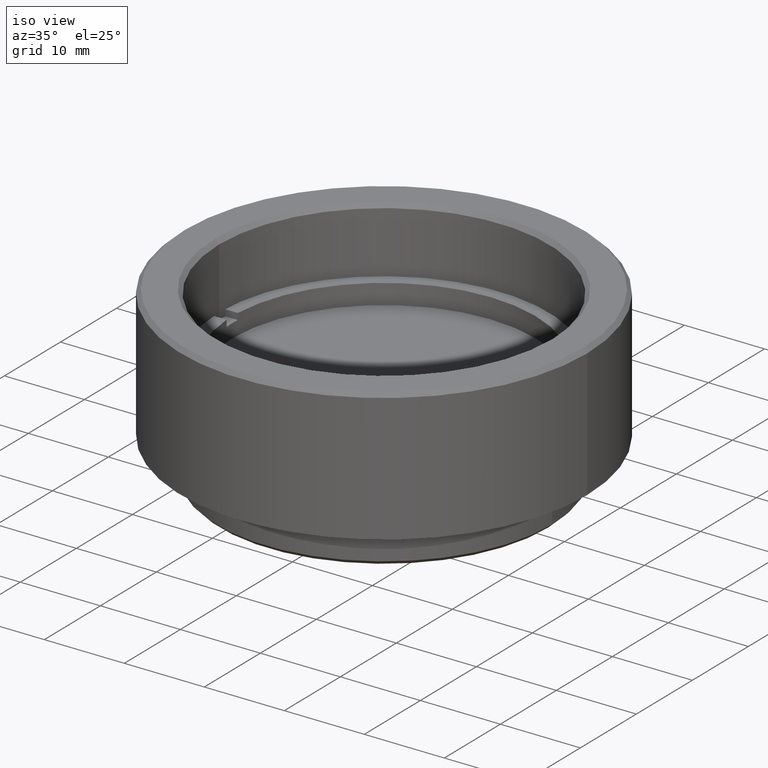
[diagram: clean part render]
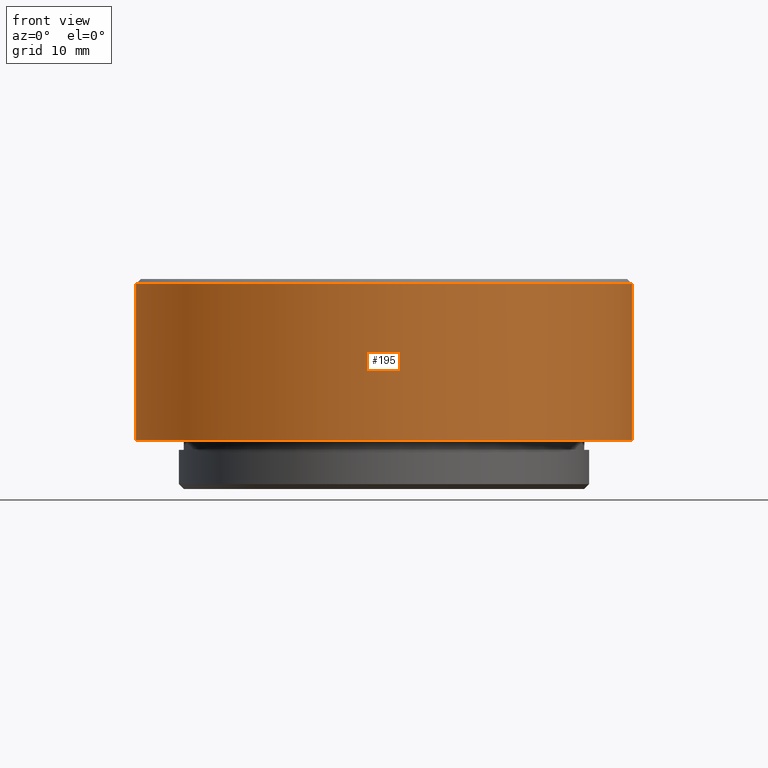
[diagram: tour spotlight — one face highlighted and labeled with its STEP entity id]
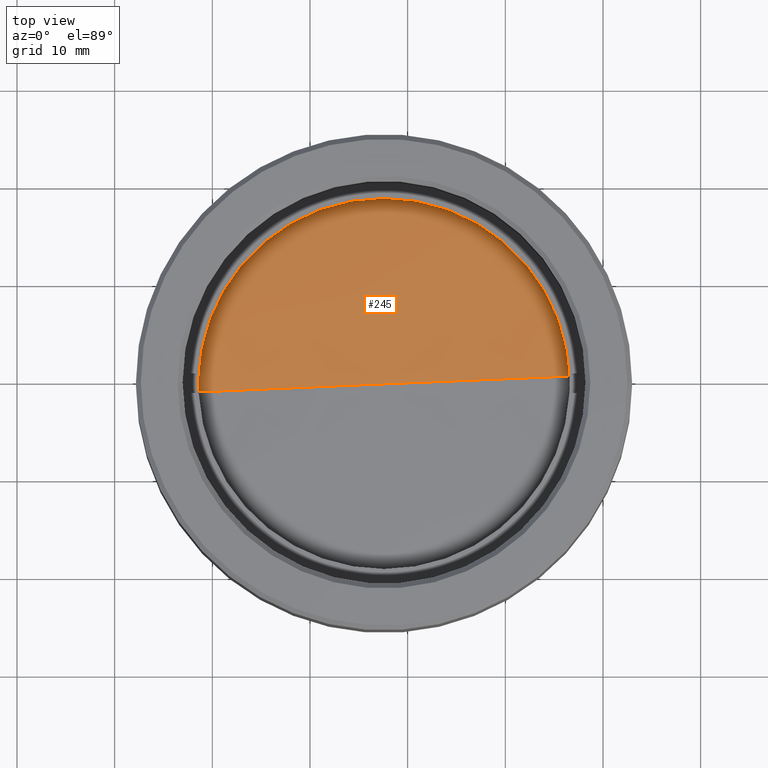
[diagram: tour spotlight — one face highlighted and labeled with its STEP entity id]
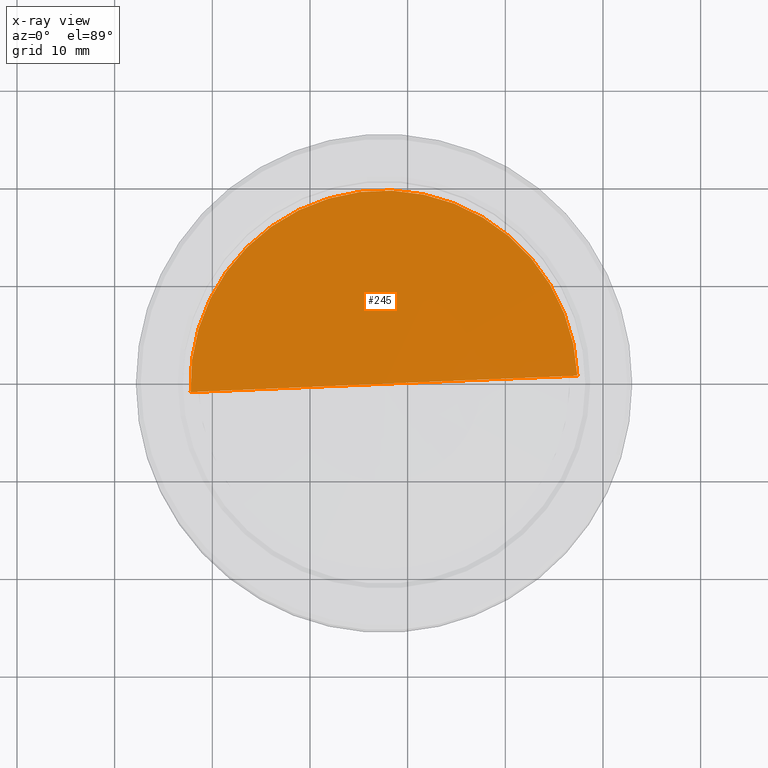
[diagram: x-ray of the same camera — body ghosted, this tour face saturated]
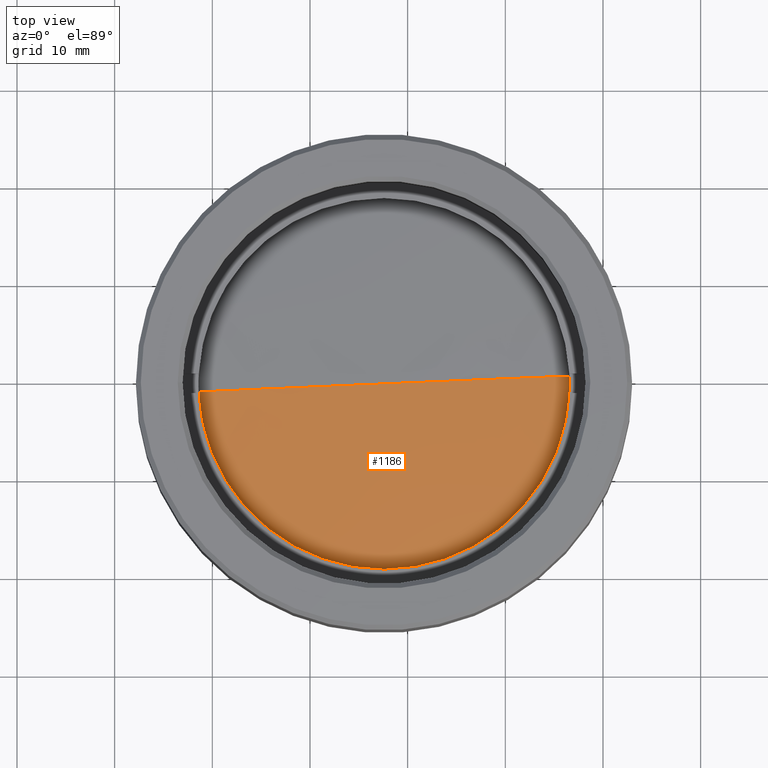
[diagram: tour spotlight — one face highlighted and labeled with its STEP entity id]
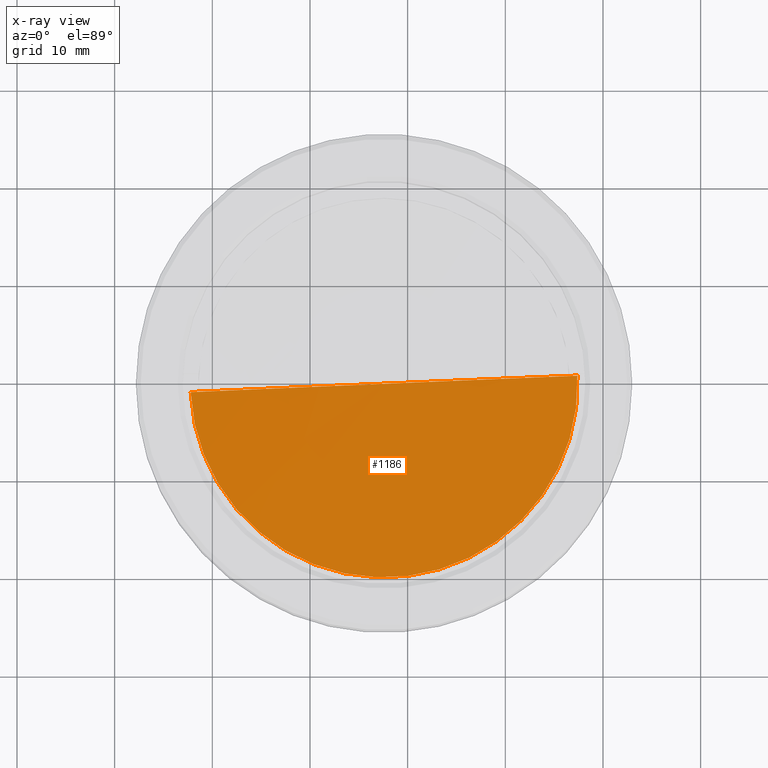
[diagram: x-ray of the same camera — body ghosted, this tour face saturated]
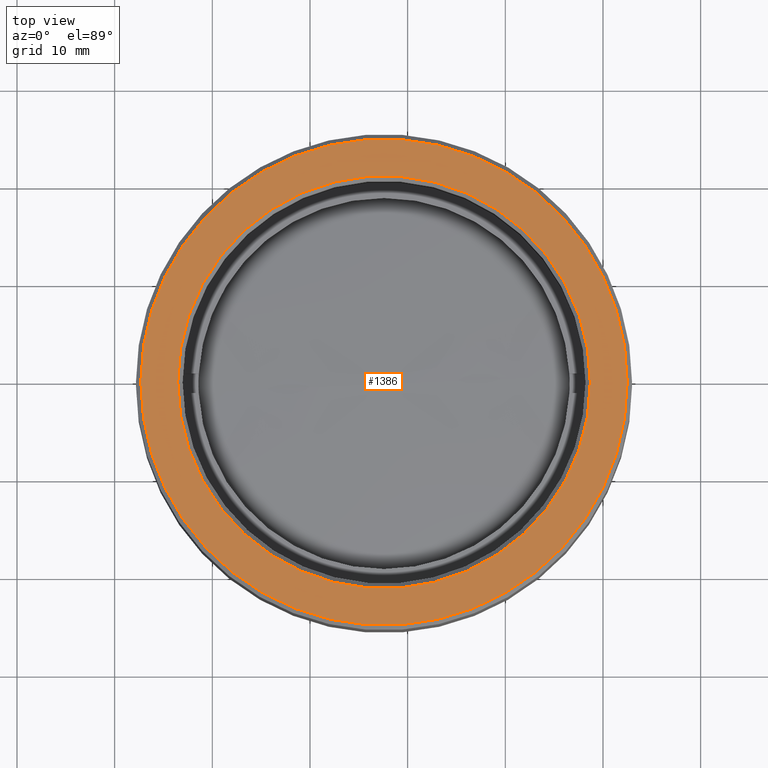
[diagram: tour spotlight — one face highlighted and labeled with its STEP entity id]
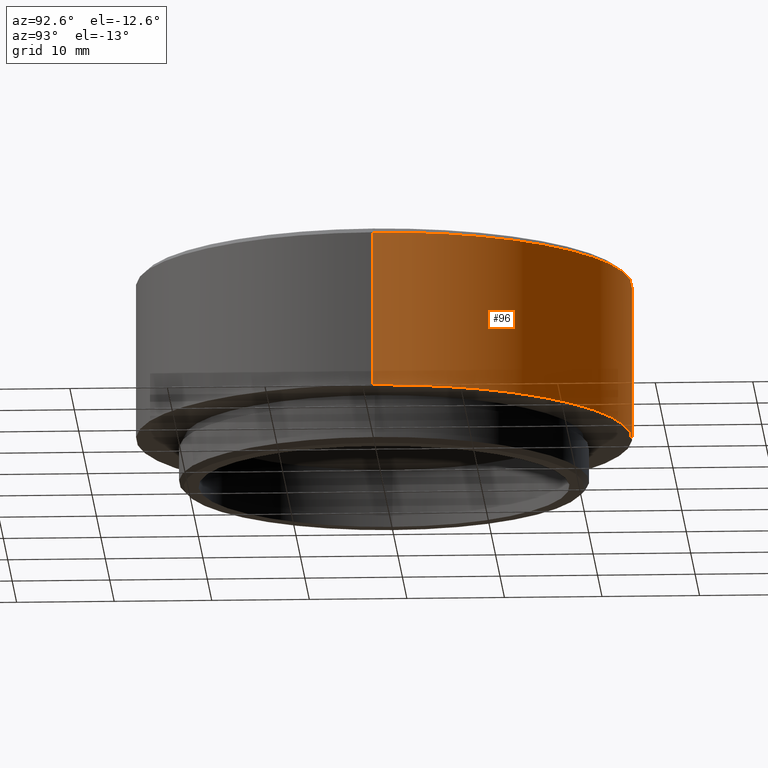
[diagram: tour spotlight — one face highlighted and labeled with its STEP entity id]
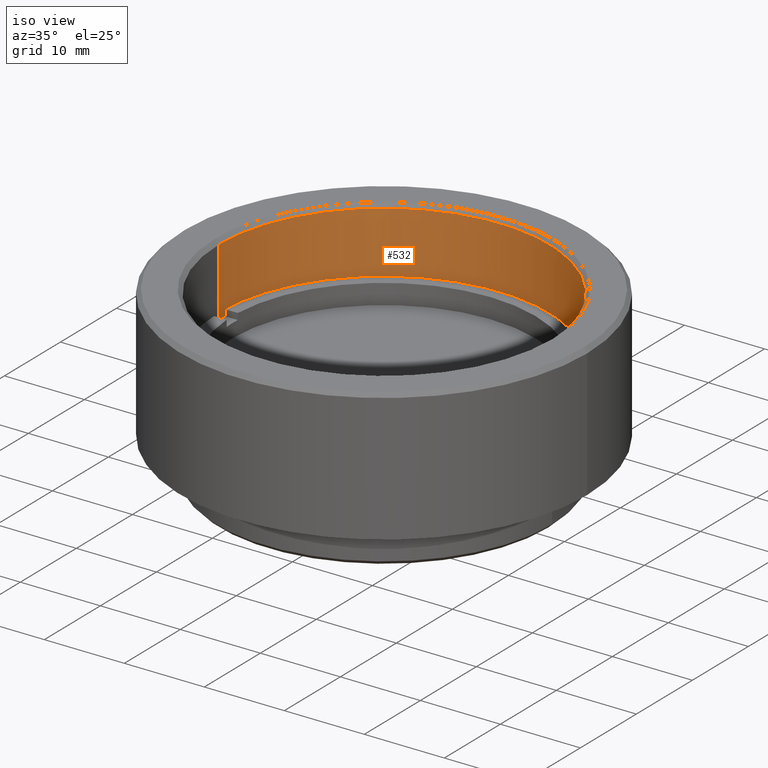
[diagram: tour spotlight — one face highlighted and labeled with its STEP entity id]
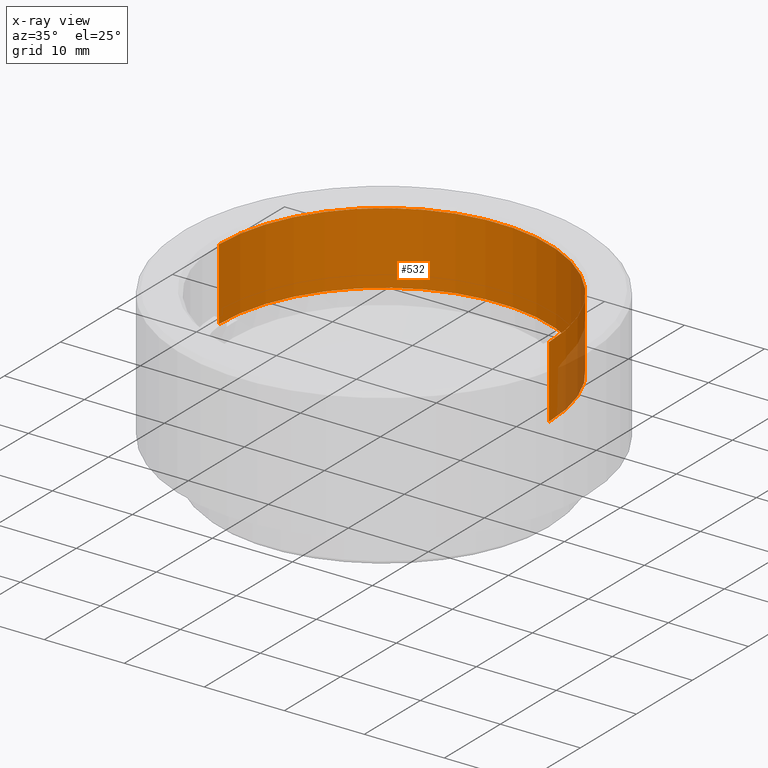
[diagram: x-ray of the same camera — body ghosted, this tour face saturated]
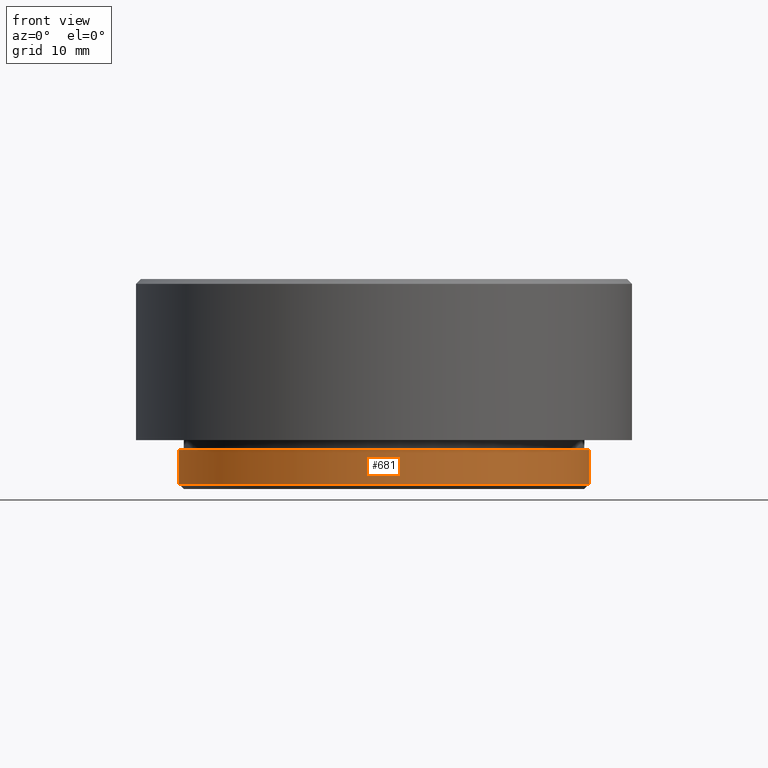
[diagram: tour spotlight — one face highlighted and labeled with its STEP entity id]
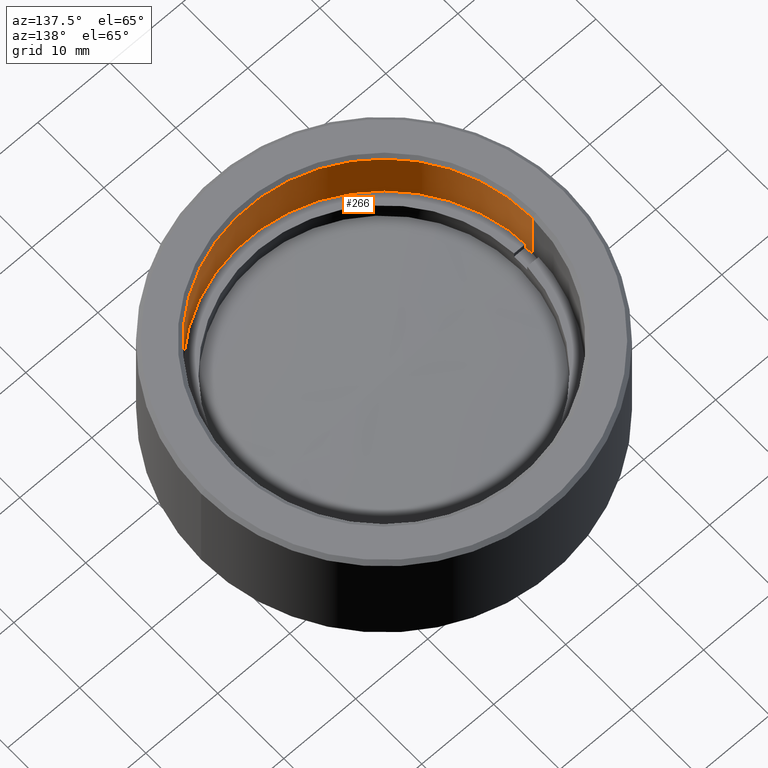
[diagram: tour spotlight — one face highlighted and labeled with its STEP entity id]
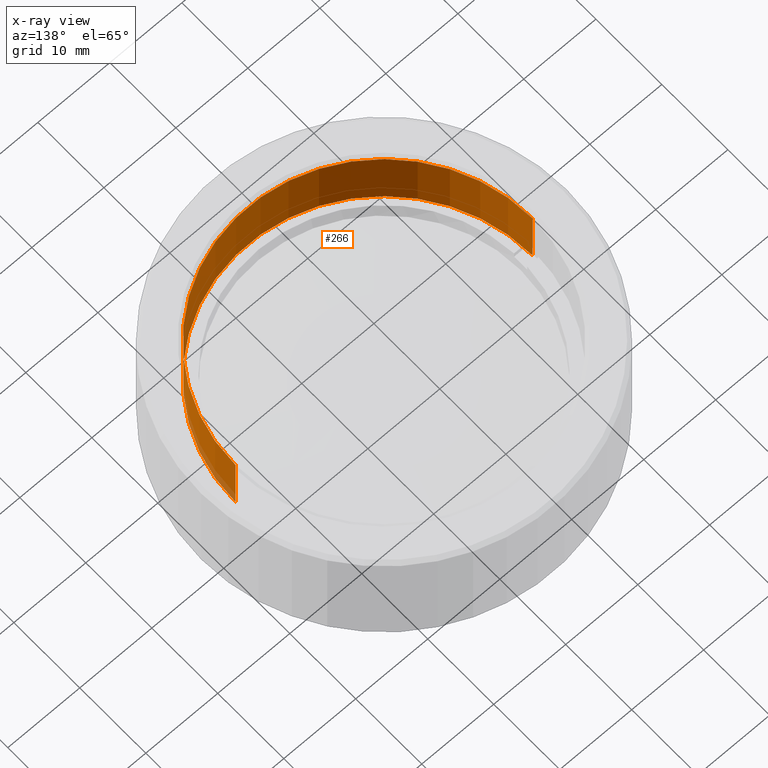
[diagram: x-ray of the same camera — body ghosted, this tour face saturated]
A machine part: a face-by-face anatomy tour. The part has 58 B-rep faces; the first image is the clean iso view, then the 8 largest visible faces are spotlighted one at a time (largest first), each with its STEP entity span.

Face 1 — front view, entity #195. In plain terms, the highlighted cylindrical surface (partial cylindrical patch) has radius 25.4 mm, axis along (-0, -0, -1).
Definition (entity closure, byte-faithful):
#11 = ORIENTED_EDGE ( 'NONE', *, *, #895, .T. ) ;
#93 = ORIENTED_EDGE ( 'NONE', *, *, #141, .F. ) ;
#137 = VERTEX_POINT ( 'NONE', #1630 ) ;
#141 = EDGE_CURVE ( 'NONE', #592, #1549, #913, .T. ) ;
#159 = VERTEX_POINT ( 'NONE', #261 ) ;
#195 = ADVANCED_FACE ( 'NONE', ( #386 ), #789, .T. ) ;
#261 = CARTESIAN_POINT ( 'NONE',  ( 25.39999999999999858, 3.110602869834276865E-15, 20.99999999999998934 ) ) ;
#284 = CARTESIAN_POINT ( 'NONE',  ( 0.000000000000000000, 0.000000000000000000, 5.000000000000000000 ) ) ;
#349 = DIRECTION ( 'NONE',  ( -0.000000000000000000, -0.000000000000000000, -1.000000000000000000 ) ) ;
#354 = DIRECTION ( 'NONE',  ( -0.000000000000000000, -0.000000000000000000, -1.000000000000000000 ) ) ;
#386 = FACE_OUTER_BOUND ( 'NONE', #1376, .T. ) ;
#520 = ORIENTED_EDGE ( 'NONE', *, *, #1141, .F. ) ;
#592 = VERTEX_POINT ( 'NONE', #740 ) ;
#641 = DIRECTION ( 'NONE',  ( -1.000000000000000000, 0.000000000000000000, 0.000000000000000000 ) ) ;
#740 = CARTESIAN_POINT ( 'NONE',  ( 25.39999999999999858, 3.110602869834276865E-15, 5.000000000000000000 ) ) ;
#745 = CARTESIAN_POINT ( 'NONE',  ( -25.39999999999999858, 0.000000000000000000, 21.50000000000000000 ) ) ;
#789 = CYLINDRICAL_SURFACE ( 'NONE', #802, 25.39999999999999858 ) ;
#799 = CARTESIAN_POINT ( 'NONE',  ( 0.000000000000000000, 0.000000000000000000, 21.50000000000000000 ) ) ;
#802 = AXIS2_PLACEMENT_3D ( 'NONE', #799, #930, #641 ) ;
#832 = VECTOR ( 'NONE', #354, 1000.000000000000000 ) ;
#882 = CIRCLE ( 'NONE', #1224, 25.39999999999999858 ) ;
#895 = EDGE_CURVE ( 'NONE', #159, #137, #882, .T. ) ;
#907 = CARTESIAN_POINT ( 'NONE',  ( 25.39999999999999858, 3.110602869834276865E-15, 21.50000000000000000 ) ) ;
#913 = CIRCLE ( 'NONE', #1132, 25.39999999999999858 ) ;
#926 = CARTESIAN_POINT ( 'NONE',  ( 0.000000000000000000, 0.000000000000000000, 20.99999999999998934 ) ) ;
#930 = DIRECTION ( 'NONE',  ( -0.000000000000000000, -0.000000000000000000, -1.000000000000000000 ) ) ;
#1059 = DIRECTION ( 'NONE',  ( 0.000000000000000000, 0.000000000000000000, -1.000000000000000000 ) ) ;
#1132 = AXIS2_PLACEMENT_3D ( 'NONE', #284, #1748, #1335 ) ;
#1141 = EDGE_CURVE ( 'NONE', #159, #592, #1540, .T. ) ;
#1154 = LINE ( 'NONE', #745, #1663 ) ;
#1224 = AXIS2_PLACEMENT_3D ( 'NONE', #926, #1059, #1602 ) ;
#1231 = CARTESIAN_POINT ( 'NONE',  ( -25.39999999999999858, 0.000000000000000000, 5.000000000000000000 ) ) ;
#1335 = DIRECTION ( 'NONE',  ( -1.000000000000000000, 0.000000000000000000, 0.000000000000000000 ) ) ;
#1376 = EDGE_LOOP ( 'NONE', ( #520, #11, #1458, #93 ) ) ;
#1458 = ORIENTED_EDGE ( 'NONE', *, *, #1658, .T. ) ;
#1540 = LINE ( 'NONE', #907, #832 ) ;
#1549 = VERTEX_POINT ( 'NONE', #1231 ) ;
#1602 = DIRECTION ( 'NONE',  ( 1.000000000000000000, 0.000000000000000000, 0.000000000000000000 ) ) ;
#1630 = CARTESIAN_POINT ( 'NONE',  ( -25.39999999999999858, 0.000000000000000000, 20.99999999999998934 ) ) ;
#1658 = EDGE_CURVE ( 'NONE', #137, #1549, #1154, .T. ) ;
#1663 = VECTOR ( 'NONE', #349, 1000.000000000000000 ) ;
#1748 = DIRECTION ( 'NONE',  ( 0.000000000000000000, 0.000000000000000000, -1.000000000000000000 ) ) ;

Face 2 — top view, entity #245. An x-ray twin of the same camera follows (body ghosted, this face saturated) — the face is partly hidden behind the body. In plain terms, the highlighted spherical surface has radius 245.64 mm.
Definition (entity closure, byte-faithful):
#36 = DIRECTION ( 'NONE',  ( -3.829917125381589518E-17, 0.000000000000000000, 1.000000000000000000 ) ) ;
#99 = CIRCLE ( 'NONE', #244, 245.6399999999999864 ) ;
#100 = SPHERICAL_SURFACE ( 'NONE', #1338, 245.6399999999999864 ) ;
#244 = AXIS2_PLACEMENT_3D ( 'NONE', #651, #1321, #1212 ) ;
#245 = ADVANCED_FACE ( 'NONE', ( #1320 ), #100, .T. ) ;
#312 = EDGE_CURVE ( 'NONE', #1499, #850, #1052, .T. ) ;
#338 = DIRECTION ( 'NONE',  ( -1.000000000000000000, 0.000000000000000000, -3.829917125381589518E-17 ) ) ;
#350 = CARTESIAN_POINT ( 'NONE',  ( -9.331810627215368687E-15, 0.000000000000000000, -0.8006027988492480096 ) ) ;
#361 = DIRECTION ( 'NONE',  ( 0.000000000000000000, -0.000000000000000000, 1.000000000000000000 ) ) ;
#368 = CARTESIAN_POINT ( 'NONE',  ( 0.000000000000000000, 0.000000000000000000, -245.6399999999999864 ) ) ;
#551 = CARTESIAN_POINT ( 'NONE',  ( 19.81613428943940391, 2.438035070599154621E-15, -0.8006027988492470104 ) ) ;
#622 = AXIS2_PLACEMENT_3D ( 'NONE', #350, #36, #338 ) ;
#651 = CARTESIAN_POINT ( 'NONE',  ( 0.000000000000000000, 0.000000000000000000, -245.6399999999999864 ) ) ;
#850 = VERTEX_POINT ( 'NONE', #1360 ) ;
#911 = DIRECTION ( 'NONE',  ( -1.000000000000000000, 0.000000000000000000, 0.000000000000000000 ) ) ;
#1052 = CIRCLE ( 'NONE', #622, 19.81613428943940391 ) ;
#1212 = DIRECTION ( 'NONE',  ( 0.000000000000000000, 0.000000000000000000, -1.000000000000000000 ) ) ;
#1243 = ORIENTED_EDGE ( 'NONE', *, *, #312, .T. ) ;
#1285 = EDGE_CURVE ( 'NONE', #1499, #850, #99, .T. ) ;
#1320 = FACE_OUTER_BOUND ( 'NONE', #1600, .T. ) ;
#1321 = DIRECTION ( 'NONE',  ( 0.000000000000000000, -1.000000000000000000, 0.000000000000000000 ) ) ;
#1338 = AXIS2_PLACEMENT_3D ( 'NONE', #368, #361, #911 ) ;
#1360 = CARTESIAN_POINT ( 'NONE',  ( -19.81613428943940391, 0.000000000000000000, -0.8006027988492490088 ) ) ;
#1499 = VERTEX_POINT ( 'NONE', #551 ) ;
#1600 = EDGE_LOOP ( 'NONE', ( #1745, #1243 ) ) ;
#1745 = ORIENTED_EDGE ( 'NONE', *, *, #1285, .F. ) ;

Face 3 — top view, entity #1186. An x-ray twin of the same camera follows (body ghosted, this face saturated) — the face is partly hidden behind the body. In plain terms, the highlighted spherical surface has radius 245.64 mm.
Definition (entity closure, byte-faithful):
#99 = CIRCLE ( 'NONE', #244, 245.6399999999999864 ) ;
#103 = SPHERICAL_SURFACE ( 'NONE', #1507, 245.6399999999999864 ) ;
#119 = CIRCLE ( 'NONE', #565, 19.81613428943940391 ) ;
#233 = ORIENTED_EDGE ( 'NONE', *, *, #371, .T. ) ;
#244 = AXIS2_PLACEMENT_3D ( 'NONE', #651, #1321, #1212 ) ;
#371 = EDGE_CURVE ( 'NONE', #850, #1499, #119, .T. ) ;
#379 = DIRECTION ( 'NONE',  ( -1.000000000000000000, 0.000000000000000000, 0.000000000000000000 ) ) ;
#551 = CARTESIAN_POINT ( 'NONE',  ( 19.81613428943940391, 2.438035070599154621E-15, -0.8006027988492470104 ) ) ;
#565 = AXIS2_PLACEMENT_3D ( 'NONE', #1037, #1375, #693 ) ;
#651 = CARTESIAN_POINT ( 'NONE',  ( 0.000000000000000000, 0.000000000000000000, -245.6399999999999864 ) ) ;
#693 = DIRECTION ( 'NONE',  ( -1.000000000000000000, 0.000000000000000000, -3.829917125381589518E-17 ) ) ;
#774 = FACE_OUTER_BOUND ( 'NONE', #1268, .T. ) ;
#850 = VERTEX_POINT ( 'NONE', #1360 ) ;
#1037 = CARTESIAN_POINT ( 'NONE',  ( -9.331810627215368687E-15, 0.000000000000000000, -0.8006027988492480096 ) ) ;
#1186 = ADVANCED_FACE ( 'NONE', ( #774 ), #103, .T. ) ;
#1187 = CARTESIAN_POINT ( 'NONE',  ( 0.000000000000000000, 0.000000000000000000, -245.6399999999999864 ) ) ;
#1212 = DIRECTION ( 'NONE',  ( 0.000000000000000000, 0.000000000000000000, -1.000000000000000000 ) ) ;
#1268 = EDGE_LOOP ( 'NONE', ( #233, #1579 ) ) ;
#1285 = EDGE_CURVE ( 'NONE', #1499, #850, #99, .T. ) ;
#1321 = DIRECTION ( 'NONE',  ( 0.000000000000000000, -1.000000000000000000, 0.000000000000000000 ) ) ;
#1360 = CARTESIAN_POINT ( 'NONE',  ( -19.81613428943940391, 0.000000000000000000, -0.8006027988492490088 ) ) ;
#1375 = DIRECTION ( 'NONE',  ( -3.829917125381589518E-17, 0.000000000000000000, 1.000000000000000000 ) ) ;
#1499 = VERTEX_POINT ( 'NONE', #551 ) ;
#1507 = AXIS2_PLACEMENT_3D ( 'NONE', #1187, #1734, #379 ) ;
#1579 = ORIENTED_EDGE ( 'NONE', *, *, #1285, .T. ) ;
#1734 = DIRECTION ( 'NONE',  ( 0.000000000000000000, -0.000000000000000000, 1.000000000000000000 ) ) ;

Face 4 — top view, entity #1386. In plain terms, the highlighted planar face has unit normal (0, 0, 1).
Definition (entity closure, byte-faithful):
#57 = ORIENTED_EDGE ( 'NONE', *, *, #210, .T. ) ;
#94 = DIRECTION ( 'NONE',  ( 1.000000000000000000, 0.000000000000000000, 0.000000000000000000 ) ) ;
#111 = VERTEX_POINT ( 'NONE', #1603 ) ;
#112 = EDGE_LOOP ( 'NONE', ( #827, #639 ) ) ;
#157 = AXIS2_PLACEMENT_3D ( 'NONE', #317, #1666, #1542 ) ;
#210 = EDGE_CURVE ( 'NONE', #234, #965, #1193, .T. ) ;
#234 = VERTEX_POINT ( 'NONE', #1203 ) ;
#239 = CARTESIAN_POINT ( 'NONE',  ( 0.000000000000000000, 0.000000000000000000, 21.50000000000000000 ) ) ;
#263 = DIRECTION ( 'NONE',  ( 1.000000000000000000, 0.000000000000000000, 0.000000000000000000 ) ) ;
#308 = ORIENTED_EDGE ( 'NONE', *, *, #1583, .T. ) ;
#317 = CARTESIAN_POINT ( 'NONE',  ( 0.000000000000000000, 0.000000000000000000, 21.50000000000000000 ) ) ;
#377 = PLANE ( 'NONE',  #513 ) ;
#459 = DIRECTION ( 'NONE',  ( 0.000000000000000000, 0.000000000000000000, 1.000000000000000000 ) ) ;
#513 = AXIS2_PLACEMENT_3D ( 'NONE', #534, #544, #1471 ) ;
#516 = DIRECTION ( 'NONE',  ( 0.000000000000000000, 0.000000000000000000, 1.000000000000000000 ) ) ;
#534 = CARTESIAN_POINT ( 'NONE',  ( 0.000000000000000000, 0.000000000000000000, 21.50000000000000000 ) ) ;
#544 = DIRECTION ( 'NONE',  ( 0.000000000000000000, 0.000000000000000000, 1.000000000000000000 ) ) ;
#559 = CARTESIAN_POINT ( 'NONE',  ( 0.000000000000000000, 0.000000000000000000, 21.50000000000000000 ) ) ;
#575 = CARTESIAN_POINT ( 'NONE',  ( -24.90000000000000568, 0.000000000000000000, 21.50000000000000000 ) ) ;
#604 = EDGE_LOOP ( 'NONE', ( #308, #57 ) ) ;
#639 = ORIENTED_EDGE ( 'NONE', *, *, #1127, .T. ) ;
#659 = CARTESIAN_POINT ( 'NONE',  ( 0.000000000000000000, 0.000000000000000000, 21.50000000000000000 ) ) ;
#660 = FACE_BOUND ( 'NONE', #112, .T. ) ;
#827 = ORIENTED_EDGE ( 'NONE', *, *, #1495, .T. ) ;
#856 = AXIS2_PLACEMENT_3D ( 'NONE', #239, #1593, #94 ) ;
#915 = CIRCLE ( 'NONE', #157, 21.12500000000005684 ) ;
#931 = FACE_OUTER_BOUND ( 'NONE', #604, .T. ) ;
#965 = VERTEX_POINT ( 'NONE', #575 ) ;
#1051 = CARTESIAN_POINT ( 'NONE',  ( -21.12500000000005684, 2.587066363198790654E-15, 21.50000000000000000 ) ) ;
#1127 = EDGE_CURVE ( 'NONE', #1287, #111, #1194, .T. ) ;
#1193 = CIRCLE ( 'NONE', #1505, 24.90000000000000568 ) ;
#1194 = CIRCLE ( 'NONE', #856, 21.12500000000005684 ) ;
#1203 = CARTESIAN_POINT ( 'NONE',  ( 24.90000000000000568, 3.079986699855593473E-15, 21.50000000000000000 ) ) ;
#1287 = VERTEX_POINT ( 'NONE', #1051 ) ;
#1386 = ADVANCED_FACE ( 'NONE', ( #660, #931 ), #377, .T. ) ;
#1471 = DIRECTION ( 'NONE',  ( 1.000000000000000000, 0.000000000000000000, -0.000000000000000000 ) ) ;
#1495 = EDGE_CURVE ( 'NONE', #111, #1287, #915, .T. ) ;
#1505 = AXIS2_PLACEMENT_3D ( 'NONE', #659, #516, #263 ) ;
#1542 = DIRECTION ( 'NONE',  ( 1.000000000000000000, 0.000000000000000000, 0.000000000000000000 ) ) ;
#1547 = CIRCLE ( 'NONE', #1608, 24.90000000000000568 ) ;
#1583 = EDGE_CURVE ( 'NONE', #965, #234, #1547, .T. ) ;
#1593 = DIRECTION ( 'NONE',  ( -0.000000000000000000, -0.000000000000000000, -1.000000000000000000 ) ) ;
#1603 = CARTESIAN_POINT ( 'NONE',  ( 21.12500000000005684, 0.000000000000000000, 21.50000000000000000 ) ) ;
#1608 = AXIS2_PLACEMENT_3D ( 'NONE', #559, #459, #1713 ) ;
#1666 = DIRECTION ( 'NONE',  ( -0.000000000000000000, -0.000000000000000000, -1.000000000000000000 ) ) ;
#1713 = DIRECTION ( 'NONE',  ( 1.000000000000000000, 0.000000000000000000, 0.000000000000000000 ) ) ;

Face 5 — auxiliary view, entity #96. In plain terms, the highlighted cylindrical surface (partial cylindrical patch) has radius 25.4 mm, axis along (-0, -0, -1).
Definition (entity closure, byte-faithful):
#3 = CARTESIAN_POINT ( 'NONE',  ( 0.000000000000000000, 0.000000000000000000, 5.000000000000000000 ) ) ;
#14 = DIRECTION ( 'NONE',  ( 0.000000000000000000, 0.000000000000000000, -1.000000000000000000 ) ) ;
#52 = ORIENTED_EDGE ( 'NONE', *, *, #1141, .T. ) ;
#96 = ADVANCED_FACE ( 'NONE', ( #1078 ), #131, .T. ) ;
#131 = CYLINDRICAL_SURFACE ( 'NONE', #1562, 25.39999999999999858 ) ;
#137 = VERTEX_POINT ( 'NONE', #1630 ) ;
#139 = DIRECTION ( 'NONE',  ( -1.000000000000000000, 0.000000000000000000, 0.000000000000000000 ) ) ;
#159 = VERTEX_POINT ( 'NONE', #261 ) ;
#261 = CARTESIAN_POINT ( 'NONE',  ( 25.39999999999999858, 3.110602869834276865E-15, 20.99999999999998934 ) ) ;
#349 = DIRECTION ( 'NONE',  ( -0.000000000000000000, -0.000000000000000000, -1.000000000000000000 ) ) ;
#354 = DIRECTION ( 'NONE',  ( -0.000000000000000000, -0.000000000000000000, -1.000000000000000000 ) ) ;
#392 = DIRECTION ( 'NONE',  ( -0.000000000000000000, -0.000000000000000000, -1.000000000000000000 ) ) ;
#417 = DIRECTION ( 'NONE',  ( 0.000000000000000000, 0.000000000000000000, -1.000000000000000000 ) ) ;
#592 = VERTEX_POINT ( 'NONE', #740 ) ;
#615 = ORIENTED_EDGE ( 'NONE', *, *, #801, .F. ) ;
#740 = CARTESIAN_POINT ( 'NONE',  ( 25.39999999999999858, 3.110602869834276865E-15, 5.000000000000000000 ) ) ;
#745 = CARTESIAN_POINT ( 'NONE',  ( -25.39999999999999858, 0.000000000000000000, 21.50000000000000000 ) ) ;
#801 = EDGE_CURVE ( 'NONE', #1549, #592, #1489, .T. ) ;
#832 = VECTOR ( 'NONE', #354, 1000.000000000000000 ) ;
#847 = EDGE_LOOP ( 'NONE', ( #1011, #52, #615, #1172 ) ) ;
#907 = CARTESIAN_POINT ( 'NONE',  ( 25.39999999999999858, 3.110602869834276865E-15, 21.50000000000000000 ) ) ;
#984 = DIRECTION ( 'NONE',  ( 1.000000000000000000, 0.000000000000000000, 0.000000000000000000 ) ) ;
#1011 = ORIENTED_EDGE ( 'NONE', *, *, #1019, .T. ) ;
#1019 = EDGE_CURVE ( 'NONE', #137, #159, #1253, .T. ) ;
#1069 = CARTESIAN_POINT ( 'NONE',  ( 0.000000000000000000, 0.000000000000000000, 21.50000000000000000 ) ) ;
#1078 = FACE_OUTER_BOUND ( 'NONE', #847, .T. ) ;
#1141 = EDGE_CURVE ( 'NONE', #159, #592, #1540, .T. ) ;
#1154 = LINE ( 'NONE', #745, #1663 ) ;
#1167 = DIRECTION ( 'NONE',  ( -1.000000000000000000, 0.000000000000000000, 0.000000000000000000 ) ) ;
#1172 = ORIENTED_EDGE ( 'NONE', *, *, #1658, .F. ) ;
#1231 = CARTESIAN_POINT ( 'NONE',  ( -25.39999999999999858, 0.000000000000000000, 5.000000000000000000 ) ) ;
#1253 = CIRCLE ( 'NONE', #1566, 25.39999999999999858 ) ;
#1388 = CARTESIAN_POINT ( 'NONE',  ( 0.000000000000000000, 0.000000000000000000, 20.99999999999998934 ) ) ;
#1418 = AXIS2_PLACEMENT_3D ( 'NONE', #3, #417, #139 ) ;
#1489 = CIRCLE ( 'NONE', #1418, 25.39999999999999858 ) ;
#1540 = LINE ( 'NONE', #907, #832 ) ;
#1549 = VERTEX_POINT ( 'NONE', #1231 ) ;
#1562 = AXIS2_PLACEMENT_3D ( 'NONE', #1069, #392, #1167 ) ;
#1566 = AXIS2_PLACEMENT_3D ( 'NONE', #1388, #14, #984 ) ;
#1630 = CARTESIAN_POINT ( 'NONE',  ( -25.39999999999999858, 0.000000000000000000, 20.99999999999998934 ) ) ;
#1658 = EDGE_CURVE ( 'NONE', #137, #1549, #1154, .T. ) ;
#1663 = VECTOR ( 'NONE', #349, 1000.000000000000000 ) ;

Face 6 — iso view, entity #532. An x-ray twin of the same camera follows (body ghosted, this face saturated) — the face is partly hidden behind the body. In plain terms, the highlighted cylindrical surface (partial cylindrical patch) has radius 20.625 mm, axis along (0, 0, 1).
Definition (entity closure, byte-faithful):
#22 = LINE ( 'NONE', #972, #709 ) ;
#64 = VECTOR ( 'NONE', #409, 1000.000000000000000 ) ;
#87 = EDGE_CURVE ( 'NONE', #1137, #1498, #321, .T. ) ;
#171 = DIRECTION ( 'NONE',  ( 0.000000000000000000, 0.000000000000000000, 1.000000000000000000 ) ) ;
#179 = CARTESIAN_POINT ( 'NONE',  ( 0.000000000000000000, 0.000000000000000000, 20.99999999999994316 ) ) ;
#231 = ORIENTED_EDGE ( 'NONE', *, *, #1265, .T. ) ;
#272 = CARTESIAN_POINT ( 'NONE',  ( 0.000000000000000000, 0.000000000000000000, 11.99999999999999645 ) ) ;
#321 = CIRCLE ( 'NONE', #825, 20.62500000000000000 ) ;
#336 = ORIENTED_EDGE ( 'NONE', *, *, #87, .T. ) ;
#389 = LINE ( 'NONE', #1473, #64 ) ;
#409 = DIRECTION ( 'NONE',  ( -0.000000000000000000, -0.000000000000000000, 1.000000000000000000 ) ) ;
#443 = CARTESIAN_POINT ( 'NONE',  ( 20.62500000000000000, 0.000000000000000000, 11.99999999999999645 ) ) ;
#532 = ADVANCED_FACE ( 'NONE', ( #884 ), #897, .F. ) ;
#709 = VECTOR ( 'NONE', #1398, 1000.000000000000000 ) ;
#717 = DIRECTION ( 'NONE',  ( 1.000000000000000000, 0.000000000000000000, 0.000000000000000000 ) ) ;
#757 = DIRECTION ( 'NONE',  ( 1.000000000000000000, 0.000000000000000000, 0.000000000000000000 ) ) ;
#825 = AXIS2_PLACEMENT_3D ( 'NONE', #272, #1303, #757 ) ;
#884 = FACE_OUTER_BOUND ( 'NONE', #1225, .T. ) ;
#897 = CYLINDRICAL_SURFACE ( 'NONE', #1001, 20.62500000000000000 ) ;
#953 = EDGE_CURVE ( 'NONE', #1359, #1198, #1025, .T. ) ;
#972 = CARTESIAN_POINT ( 'NONE',  ( -20.62500000000000000, 2.525834023241415981E-15, 10.99999999999999822 ) ) ;
#999 = EDGE_CURVE ( 'NONE', #1137, #1198, #22, .T. ) ;
#1001 = AXIS2_PLACEMENT_3D ( 'NONE', #1725, #1027, #1422 ) ;
#1025 = CIRCLE ( 'NONE', #1678, 20.62500000000000000 ) ;
#1027 = DIRECTION ( 'NONE',  ( -0.000000000000000000, -0.000000000000000000, 1.000000000000000000 ) ) ;
#1057 = CARTESIAN_POINT ( 'NONE',  ( -20.62500000000000000, 2.525834023241415981E-15, 11.99999999999999645 ) ) ;
#1099 = ORIENTED_EDGE ( 'NONE', *, *, #999, .F. ) ;
#1137 = VERTEX_POINT ( 'NONE', #1057 ) ;
#1198 = VERTEX_POINT ( 'NONE', #1316 ) ;
#1225 = EDGE_LOOP ( 'NONE', ( #1099, #336, #231, #1610 ) ) ;
#1265 = EDGE_CURVE ( 'NONE', #1498, #1359, #389, .T. ) ;
#1303 = DIRECTION ( 'NONE',  ( -0.000000000000000000, -0.000000000000000000, -1.000000000000000000 ) ) ;
#1316 = CARTESIAN_POINT ( 'NONE',  ( -20.62500000000000000, 2.525834023241415981E-15, 20.99999999999994316 ) ) ;
#1356 = CARTESIAN_POINT ( 'NONE',  ( 20.62500000000000000, 0.000000000000000000, 20.99999999999994316 ) ) ;
#1359 = VERTEX_POINT ( 'NONE', #1356 ) ;
#1398 = DIRECTION ( 'NONE',  ( -0.000000000000000000, -0.000000000000000000, 1.000000000000000000 ) ) ;
#1422 = DIRECTION ( 'NONE',  ( 1.000000000000000000, 0.000000000000000000, 0.000000000000000000 ) ) ;
#1473 = CARTESIAN_POINT ( 'NONE',  ( 20.62500000000000000, 0.000000000000000000, 10.99999999999999822 ) ) ;
#1498 = VERTEX_POINT ( 'NONE', #443 ) ;
#1610 = ORIENTED_EDGE ( 'NONE', *, *, #953, .T. ) ;
#1678 = AXIS2_PLACEMENT_3D ( 'NONE', #179, #171, #717 ) ;
#1725 = CARTESIAN_POINT ( 'NONE',  ( 0.000000000000000000, 0.000000000000000000, 10.99999999999999822 ) ) ;

Face 7 — front view, entity #681. In plain terms, the highlighted cylindrical surface (partial cylindrical patch) has radius 21 mm, axis along (-0, -0, -1).
Definition (entity closure, byte-faithful):
#6 = EDGE_CURVE ( 'NONE', #670, #277, #978, .T. ) ;
#19 = DIRECTION ( 'NONE',  ( -1.000000000000000000, 0.000000000000000000, 0.000000000000000000 ) ) ;
#60 = ORIENTED_EDGE ( 'NONE', *, *, #6, .T. ) ;
#127 = LINE ( 'NONE', #267, #1311 ) ;
#198 = EDGE_LOOP ( 'NONE', ( #1207, #60, #894, #1160 ) ) ;
#213 = VERTEX_POINT ( 'NONE', #246 ) ;
#225 = AXIS2_PLACEMENT_3D ( 'NONE', #1543, #1024, #1674 ) ;
#246 = CARTESIAN_POINT ( 'NONE',  ( -21.00000000000000000, 0.000000000000000000, 0.4999999999999970024 ) ) ;
#267 = CARTESIAN_POINT ( 'NONE',  ( -21.00000000000000000, 0.000000000000000000, 5.000000000000000000 ) ) ;
#277 = VERTEX_POINT ( 'NONE', #1191 ) ;
#292 = DIRECTION ( 'NONE',  ( -0.000000000000000000, -0.000000000000000000, -1.000000000000000000 ) ) ;
#309 = CARTESIAN_POINT ( 'NONE',  ( 21.00000000000000000, 2.571758278209441661E-15, 4.000000000000000000 ) ) ;
#337 = EDGE_CURVE ( 'NONE', #213, #900, #1736, .T. ) ;
#407 = AXIS2_PLACEMENT_3D ( 'NONE', #714, #292, #19 ) ;
#427 = VECTOR ( 'NONE', #1216, 1000.000000000000000 ) ;
#654 = CARTESIAN_POINT ( 'NONE',  ( 21.00000000000000000, 2.571758278209441661E-15, 5.000000000000000000 ) ) ;
#670 = VERTEX_POINT ( 'NONE', #309 ) ;
#681 = ADVANCED_FACE ( 'NONE', ( #855 ), #687, .T. ) ;
#687 = CYLINDRICAL_SURFACE ( 'NONE', #407, 21.00000000000000000 ) ;
#714 = CARTESIAN_POINT ( 'NONE',  ( 0.000000000000000000, 0.000000000000000000, 5.000000000000000000 ) ) ;
#855 = FACE_OUTER_BOUND ( 'NONE', #198, .T. ) ;
#894 = ORIENTED_EDGE ( 'NONE', *, *, #1208, .T. ) ;
#900 = VERTEX_POINT ( 'NONE', #1618 ) ;
#967 = AXIS2_PLACEMENT_3D ( 'NONE', #1661, #1292, #1431 ) ;
#978 = CIRCLE ( 'NONE', #225, 21.00000000000000000 ) ;
#1024 = DIRECTION ( 'NONE',  ( 0.000000000000000000, 0.000000000000000000, -1.000000000000000000 ) ) ;
#1086 = LINE ( 'NONE', #654, #427 ) ;
#1160 = ORIENTED_EDGE ( 'NONE', *, *, #337, .T. ) ;
#1191 = CARTESIAN_POINT ( 'NONE',  ( -21.00000000000000000, 0.000000000000000000, 4.000000000000000000 ) ) ;
#1207 = ORIENTED_EDGE ( 'NONE', *, *, #1264, .F. ) ;
#1208 = EDGE_CURVE ( 'NONE', #277, #213, #127, .T. ) ;
#1216 = DIRECTION ( 'NONE',  ( -0.000000000000000000, -0.000000000000000000, -1.000000000000000000 ) ) ;
#1264 = EDGE_CURVE ( 'NONE', #670, #900, #1086, .T. ) ;
#1292 = DIRECTION ( 'NONE',  ( 0.000000000000000000, 0.000000000000000000, 1.000000000000000000 ) ) ;
#1311 = VECTOR ( 'NONE', #1350, 1000.000000000000000 ) ;
#1350 = DIRECTION ( 'NONE',  ( -0.000000000000000000, -0.000000000000000000, -1.000000000000000000 ) ) ;
#1431 = DIRECTION ( 'NONE',  ( 1.000000000000000000, 0.000000000000000000, 0.000000000000000000 ) ) ;
#1543 = CARTESIAN_POINT ( 'NONE',  ( 0.000000000000000000, 0.000000000000000000, 4.000000000000000000 ) ) ;
#1618 = CARTESIAN_POINT ( 'NONE',  ( 21.00000000000000000, 2.571758278209441661E-15, 0.4999999999999970024 ) ) ;
#1661 = CARTESIAN_POINT ( 'NONE',  ( 0.000000000000000000, 0.000000000000000000, 0.4999999999999970024 ) ) ;
#1674 = DIRECTION ( 'NONE',  ( -1.000000000000000000, 0.000000000000000000, 0.000000000000000000 ) ) ;
#1736 = CIRCLE ( 'NONE', #967, 21.00000000000000000 ) ;

Face 8 — auxiliary view, entity #266. An x-ray twin of the same camera follows (body ghosted, this face saturated) — the face is partly hidden behind the body. In plain terms, the highlighted cylindrical surface (partial cylindrical patch) has radius 20.625 mm, axis along (0, 0, 1).
Definition (entity closure, byte-faithful):
#22 = LINE ( 'NONE', #972, #709 ) ;
#64 = VECTOR ( 'NONE', #409, 1000.000000000000000 ) ;
#86 = ORIENTED_EDGE ( 'NONE', *, *, #1265, .F. ) ;
#249 = DIRECTION ( 'NONE',  ( 0.000000000000000000, 0.000000000000000000, 1.000000000000000000 ) ) ;
#259 = AXIS2_PLACEMENT_3D ( 'NONE', #1090, #1613, #262 ) ;
#262 = DIRECTION ( 'NONE',  ( 1.000000000000000000, 0.000000000000000000, 0.000000000000000000 ) ) ;
#266 = ADVANCED_FACE ( 'NONE', ( #903 ), #1460, .F. ) ;
#389 = LINE ( 'NONE', #1473, #64 ) ;
#409 = DIRECTION ( 'NONE',  ( -0.000000000000000000, -0.000000000000000000, 1.000000000000000000 ) ) ;
#443 = CARTESIAN_POINT ( 'NONE',  ( 20.62500000000000000, 0.000000000000000000, 11.99999999999999645 ) ) ;
#471 = ORIENTED_EDGE ( 'NONE', *, *, #999, .T. ) ;
#497 = CARTESIAN_POINT ( 'NONE',  ( 0.000000000000000000, 0.000000000000000000, 10.99999999999999822 ) ) ;
#709 = VECTOR ( 'NONE', #1398, 1000.000000000000000 ) ;
#903 = FACE_OUTER_BOUND ( 'NONE', #1087, .T. ) ;
#916 = CARTESIAN_POINT ( 'NONE',  ( 0.000000000000000000, 0.000000000000000000, 20.99999999999994316 ) ) ;
#917 = ORIENTED_EDGE ( 'NONE', *, *, #1712, .T. ) ;
#972 = CARTESIAN_POINT ( 'NONE',  ( -20.62500000000000000, 2.525834023241415981E-15, 10.99999999999999822 ) ) ;
#992 = AXIS2_PLACEMENT_3D ( 'NONE', #916, #249, #1576 ) ;
#999 = EDGE_CURVE ( 'NONE', #1137, #1198, #22, .T. ) ;
#1057 = CARTESIAN_POINT ( 'NONE',  ( -20.62500000000000000, 2.525834023241415981E-15, 11.99999999999999645 ) ) ;
#1085 = CIRCLE ( 'NONE', #992, 20.62500000000000000 ) ;
#1087 = EDGE_LOOP ( 'NONE', ( #917, #471, #1704, #86 ) ) ;
#1090 = CARTESIAN_POINT ( 'NONE',  ( 0.000000000000000000, 0.000000000000000000, 11.99999999999999645 ) ) ;
#1137 = VERTEX_POINT ( 'NONE', #1057 ) ;
#1139 = EDGE_CURVE ( 'NONE', #1198, #1359, #1085, .T. ) ;
#1184 = DIRECTION ( 'NONE',  ( 1.000000000000000000, 0.000000000000000000, 0.000000000000000000 ) ) ;
#1198 = VERTEX_POINT ( 'NONE', #1316 ) ;
#1265 = EDGE_CURVE ( 'NONE', #1498, #1359, #389, .T. ) ;
#1299 = CIRCLE ( 'NONE', #259, 20.62500000000000000 ) ;
#1316 = CARTESIAN_POINT ( 'NONE',  ( -20.62500000000000000, 2.525834023241415981E-15, 20.99999999999994316 ) ) ;
#1356 = CARTESIAN_POINT ( 'NONE',  ( 20.62500000000000000, 0.000000000000000000, 20.99999999999994316 ) ) ;
#1359 = VERTEX_POINT ( 'NONE', #1356 ) ;
#1398 = DIRECTION ( 'NONE',  ( -0.000000000000000000, -0.000000000000000000, 1.000000000000000000 ) ) ;
#1414 = AXIS2_PLACEMENT_3D ( 'NONE', #497, #1453, #1184 ) ;
#1453 = DIRECTION ( 'NONE',  ( -0.000000000000000000, -0.000000000000000000, 1.000000000000000000 ) ) ;
#1460 = CYLINDRICAL_SURFACE ( 'NONE', #1414, 20.62500000000000000 ) ;
#1473 = CARTESIAN_POINT ( 'NONE',  ( 20.62500000000000000, 0.000000000000000000, 10.99999999999999822 ) ) ;
#1498 = VERTEX_POINT ( 'NONE', #443 ) ;
#1576 = DIRECTION ( 'NONE',  ( 1.000000000000000000, 0.000000000000000000, 0.000000000000000000 ) ) ;
#1613 = DIRECTION ( 'NONE',  ( -0.000000000000000000, -0.000000000000000000, -1.000000000000000000 ) ) ;
#1704 = ORIENTED_EDGE ( 'NONE', *, *, #1139, .T. ) ;
#1712 = EDGE_CURVE ( 'NONE', #1498, #1137, #1299, .T. ) ;